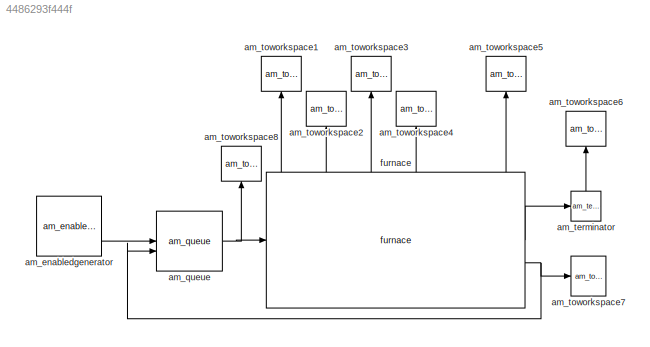
MODEL slx_4486293f444f
KIND model
CONFIG AbsTol = auto
CONFIG EnableMultiTasking = off
CONFIG FixedStep = auto
CONFIG MaxStep = auto
CONFIG MinStep = auto
CONFIG RelTol = 1e-3
CONFIG SampleTimeConstraint = Unconstrained
CONFIG SolverName = VariableStepAuto
CONFIG StartTime = 0.0
CONFIG StopTime = 10.0
BLOCK [Reference] am_enabledgenerator  REF=StdLib/am_enabledgenerator
  SourceBlock = StdLib/am_enabledgenerator
  SourceType = EnabledGenerator
BLOCK [Reference] am_queue  REF=StdLib/am_queue
  SourceBlock = StdLib/am_queue
  SourceType = Queue
BLOCK [Reference] am_terminator  REF=StdLib/am_terminator
  SourceBlock = StdLib/am_terminator
  SourceType = Terminator
BLOCK [Reference] am_toworkspace1  REF=StdLib/am_toworkspace
  NameLocation = right
  SourceBlock = StdLib/am_toworkspace
  SourceType = ToWorkspace
BLOCK [Reference] am_toworkspace2  REF=StdLib/am_toworkspace
  NameLocation = right
  SourceBlock = StdLib/am_toworkspace
  SourceType = ToWorkspace
BLOCK [Reference] am_toworkspace3  REF=StdLib/am_toworkspace
  NameLocation = right
  SourceBlock = StdLib/am_toworkspace
  SourceType = ToWorkspace
BLOCK [Reference] am_toworkspace4  REF=StdLib/am_toworkspace
  NameLocation = right
  SourceBlock = StdLib/am_toworkspace
  SourceType = ToWorkspace
BLOCK [Reference] am_toworkspace5  REF=StdLib/am_toworkspace
  NameLocation = right
  SourceBlock = StdLib/am_toworkspace
  SourceType = ToWorkspace
BLOCK [Reference] am_toworkspace6  REF=StdLib/am_toworkspace
  NameLocation = right
  SourceBlock = StdLib/am_toworkspace
  SourceType = ToWorkspace
BLOCK [Reference] am_toworkspace7  REF=StdLib/am_toworkspace
  SourceBlock = StdLib/am_toworkspace
  SourceType = ToWorkspace
BLOCK [Reference] am_toworkspace8  REF=StdLib/am_toworkspace
  NameLocation = right
  SourceBlock = StdLib/am_toworkspace
  SourceType = ToWorkspace
BLOCK [Reference] furnace  REF=ProductionLinePLib/furnace
  SourceBlock = ProductionLinePLib/furnace
LINE am_enabledgenerator:1 -> am_queue:1
NET am_queue:1 -> am_toworkspace8:1, furnace:1
LINE am_terminator:1 -> am_toworkspace6:1
LINE furnace:1 -> am_terminator:1
NET furnace:2 -> am_queue:2, am_toworkspace7:1
LINE furnace:3 -> am_toworkspace1:1
LINE furnace:4 -> am_toworkspace2:1
LINE furnace:5 -> am_toworkspace3:1
LINE furnace:6 -> am_toworkspace4:1
LINE furnace:8 -> am_toworkspace5:1
note: NET lines group one-source signal fan-out (src -> all destinations, sorted); 1:1 wires keep LINE
